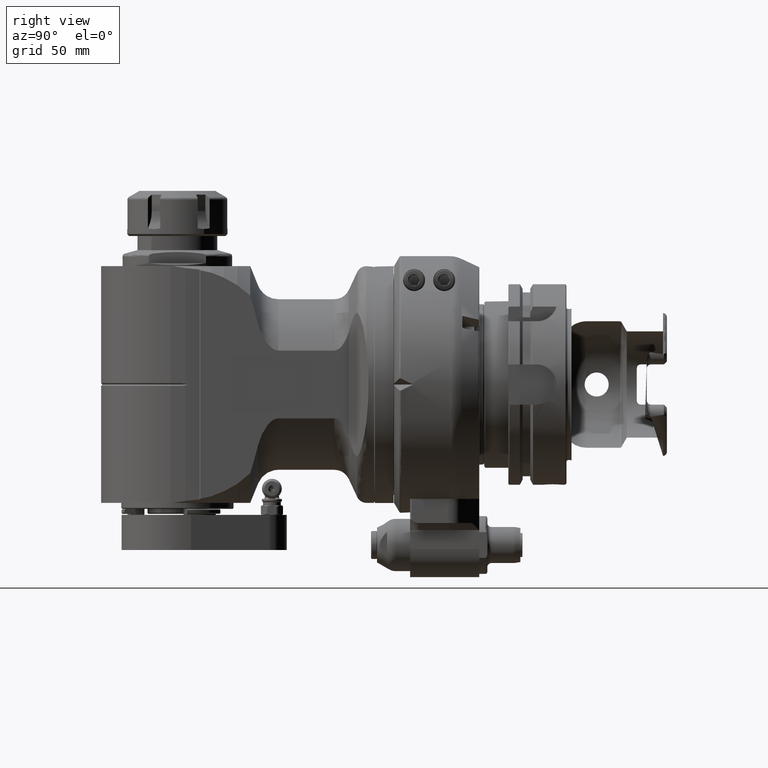
[diagram: clean part render]
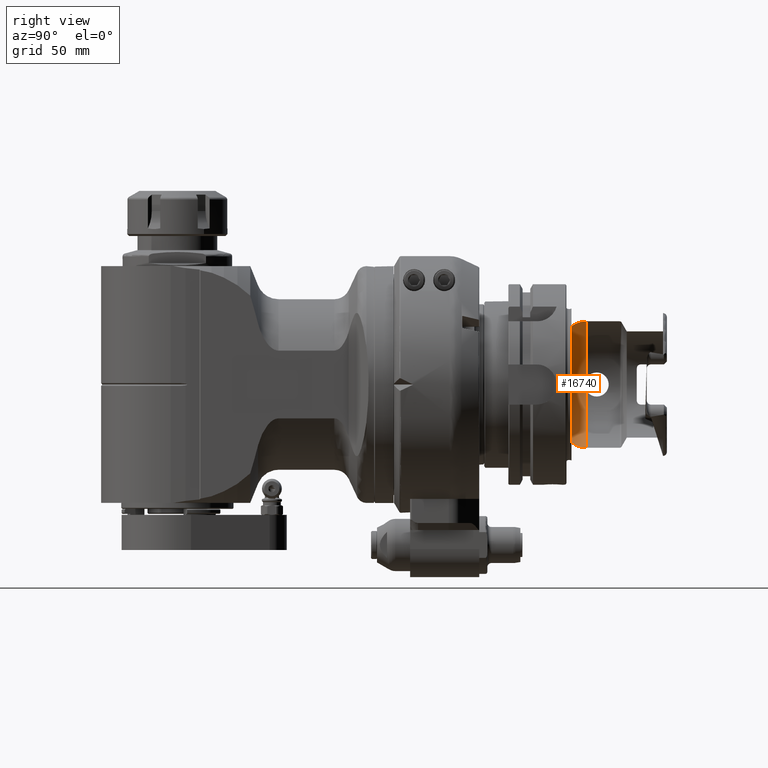
[diagram: same view with one face highlighted and labeled with its STEP entity id]
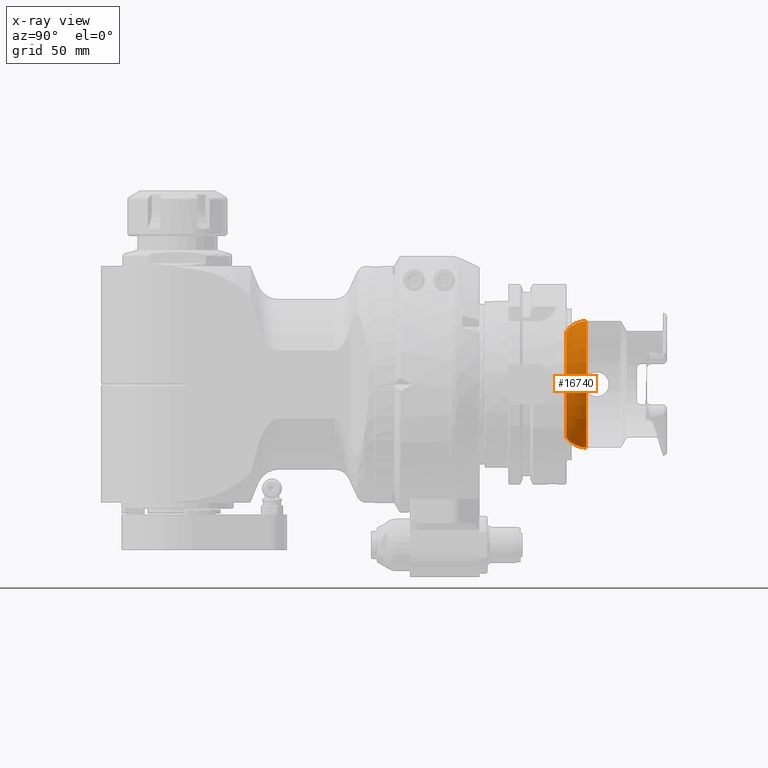
[diagram: x-ray of the same camera — body ghosted, the highlighted face saturated]
A machine part, right view. The second image highlights one B-rep face of the part: STEP entity #16740.
The next image is the same camera in x-ray: the body ghosted, the highlighted face saturated — about 0% of this face is hidden behind the body in this view.
In plain terms, the highlighted toroidal blend (fillet) surface has major radius 19.5 mm and minor (blend) radius 12 mm.
Its self-contained STEP definition (entity closure, byte-faithful):
#91=TOROIDAL_SURFACE('',#18448,19.5,12.);
#4104=CIRCLE('',#18446,26.5);
#4105=CIRCLE('',#18447,26.5);
#4106=CIRCLE('',#18449,12.);
#4107=CIRCLE('',#18450,31.5);
#4108=CIRCLE('',#18451,31.5);
#4109=CIRCLE('',#18452,31.5);
#4110=CIRCLE('',#18453,31.5);
#4999=FACE_OUTER_BOUND('',#6054,.T.);
#6054=EDGE_LOOP('',(#14824,#14825,#14826,#14827,#14828,#14829,#14830,#14831,
#14832,#14833));
#6430=B_SPLINE_CURVE_WITH_KNOTS('',3,(#31504,#31505,#31506,#31507,#31508,
#31509,#31510,#31511,#31512,#31513,#31514,#31515,#31516,#31517,#31518,#31519,
#31520,#31521,#31522,#31523,#31524,#31525,#31526,#31527,#31528,#31529,#31530,
#31531,#31532,#31533,#31534,#31535,#31536,#31537,#31538,#31539,#31540,#31541,
#31542,#31543,#31544,#31545,#31546,#31547,#31548,#31549,#31550,#31551,#31552,
#31553,#31554,#31555,#31556,#31557,#31558),.UNSPECIFIED.,.F.,.F.,(4,3,3,
3,3,3,3,3,3,3,3,3,3,3,3,3,3,3,4),(0.,0.05555555555556,0.1111111111111,0.1666666666667,
0.2222222222222,0.2777777777778,0.3333333333333,0.3888888888889,0.4444444444444,
0.5,0.5555555555556,0.6111111111111,0.6666666666667,0.7222222222222,0.7777777777778,
0.8333333333333,0.8888888888889,0.9444444444444,1.),.UNSPECIFIED.);
#6431=B_SPLINE_CURVE_WITH_KNOTS('',3,(#31564,#31565,#31566,#31567,#31568,
#31569,#31570,#31571,#31572,#31573,#31574,#31575,#31576,#31577,#31578,#31579,
#31580,#31581,#31582,#31583,#31584,#31585,#31586,#31587,#31588,#31589,#31590,
#31591,#31592,#31593,#31594,#31595,#31596,#31597,#31598,#31599,#31600,#31601,
#31602,#31603,#31604,#31605,#31606,#31607,#31608,#31609,#31610,#31611,#31612,
#31613,#31614,#31615,#31616,#31617,#31618),.UNSPECIFIED.,.F.,.F.,(4,3,3,
3,3,3,3,3,3,3,3,3,3,3,3,3,3,3,4),(0.,0.05555555555556,0.1111111111111,0.1666666666667,
0.2222222222222,0.2777777777778,0.3333333333333,0.3888888888889,0.4444444444444,
0.5,0.5555555555556,0.6111111111111,0.6666666666667,0.7222222222222,0.7777777777778,
0.8333333333333,0.8888888888889,0.9444444444444,1.),.UNSPECIFIED.);
#7952=VERTEX_POINT('',#31493);
#7953=VERTEX_POINT('',#31495);
#7954=VERTEX_POINT('',#31499);
#7955=VERTEX_POINT('',#31501);
#7956=VERTEX_POINT('',#31503);
#7957=VERTEX_POINT('',#31559);
#7958=VERTEX_POINT('',#31561);
#7959=VERTEX_POINT('',#31563);
#10291=EDGE_CURVE('',#7953,#7952,#4104,.T.);
#10292=EDGE_CURVE('',#7952,#7953,#4105,.T.);
#10293=EDGE_CURVE('',#7953,#7954,#4106,.T.);
#10294=EDGE_CURVE('',#7954,#7955,#4107,.T.);
#10295=EDGE_CURVE('',#7956,#7955,#6430,.T.);
#10296=EDGE_CURVE('',#7956,#7957,#4108,.T.);
#10297=EDGE_CURVE('',#7957,#7958,#4109,.T.);
#10298=EDGE_CURVE('',#7959,#7958,#6431,.T.);
#10299=EDGE_CURVE('',#7959,#7954,#4110,.T.);
#14824=ORIENTED_EDGE('',*,*,#10291,.T.);
#14825=ORIENTED_EDGE('',*,*,#10292,.T.);
#14826=ORIENTED_EDGE('',*,*,#10293,.T.);
#14827=ORIENTED_EDGE('',*,*,#10294,.T.);
#14828=ORIENTED_EDGE('',*,*,#10295,.F.);
#14829=ORIENTED_EDGE('',*,*,#10296,.T.);
#14830=ORIENTED_EDGE('',*,*,#10297,.T.);
#14831=ORIENTED_EDGE('',*,*,#10298,.F.);
#14832=ORIENTED_EDGE('',*,*,#10299,.T.);
#14833=ORIENTED_EDGE('',*,*,#10293,.F.);
#16740=ADVANCED_FACE('',(#4999),#91,.F.);
#18446=AXIS2_PLACEMENT_3D('',#31496,#22709,#22710);
#18447=AXIS2_PLACEMENT_3D('',#31497,#22711,#22712);
#18448=AXIS2_PLACEMENT_3D('',#31498,#22713,#22714);
#18449=AXIS2_PLACEMENT_3D('',#31500,#22715,#22716);
#18450=AXIS2_PLACEMENT_3D('',#31502,#22717,#22718);
#18451=AXIS2_PLACEMENT_3D('',#31560,#22719,#22720);
#18452=AXIS2_PLACEMENT_3D('',#31562,#22721,#22722);
#18453=AXIS2_PLACEMENT_3D('',#31619,#22723,#22724);
#22709=DIRECTION('center_axis',(0.,-1.,-3.552713678797E-13));
#22710=DIRECTION('ref_axis',(0.,3.552713678797E-13,-1.));
#22711=DIRECTION('center_axis',(0.,-1.,-3.552713678797E-13));
#22712=DIRECTION('ref_axis',(0.,3.552713678797E-13,-1.));
#22713=DIRECTION('center_axis',(0.,1.,3.552713678797E-13));
#22714=DIRECTION('ref_axis',(0.,-3.55045798757587E-13,1.));
#22715=DIRECTION('center_axis',(1.,4.35081943502576E-29,-1.22464679914735E-16));
#22716=DIRECTION('ref_axis',(-1.22464679914735E-16,3.5527136788005E-13,
-1.));
#22717=DIRECTION('center_axis',(0.,1.,3.552713678797E-13));
#22718=DIRECTION('ref_axis',(0.,3.552713678797E-13,-1.));
#22719=DIRECTION('center_axis',(0.,1.,3.552713678797E-13));
#22720=DIRECTION('ref_axis',(0.,-3.552713678797E-13,1.));
#22721=DIRECTION('center_axis',(0.,1.,3.552713678797E-13));
#22722=DIRECTION('ref_axis',(0.,-3.552713678797E-13,1.));
#22723=DIRECTION('center_axis',(0.,1.,3.552713678797E-13));
#22724=DIRECTION('ref_axis',(0.,3.552713678797E-13,-1.));
#31493=CARTESIAN_POINT('',(3.24531401774049E-15,85.9999997692206,26.5000000000168));
#31495=CARTESIAN_POINT('',(0.,85.99999976924,-26.49999999998));
#31496=CARTESIAN_POINT('Origin',(0.,85.99999976923,1.677726611824E-11));
#31497=CARTESIAN_POINT('Origin',(0.,85.99999976923,1.677726611824E-11));
#31498=CARTESIAN_POINT('Origin',(0.,95.74679411405,2.024002307757E-11));
#31499=CARTESIAN_POINT('',(-3.85763741731416E-15,95.7467941140612,-31.4999999999798));
#31500=CARTESIAN_POINT('Origin',(-2.38806125833734E-15,95.7467941140569,
-19.4999999999798));
#31501=CARTESIAN_POINT('',(-31.36632222075,95.74679411404,-2.898936071055));
#31502=CARTESIAN_POINT('Origin',(0.,95.74679411405,2.024002307757E-11));
#31503=CARTESIAN_POINT('',(-31.36632222075,95.74679411403,2.898936071092));
#31504=CARTESIAN_POINT('Ctrl Pts',(-31.36632222075,95.7467941140142,2.89893607110073));
#31505=CARTESIAN_POINT('Ctrl Pts',(-31.37531853835,95.6930780756117,2.80159643000769));
#31506=CARTESIAN_POINT('Ctrl Pts',(-31.383648521965,95.6419815165672,2.70260779605981));
#31507=CARTESIAN_POINT('Ctrl Pts',(-31.3913619470342,95.5935947419713,2.60207315069057));
#31508=CARTESIAN_POINT('Ctrl Pts',(-31.3990753721033,95.5452079673754,2.50153850532136));
#31509=CARTESIAN_POINT('Ctrl Pts',(-31.4061722386267,95.4995339352361,2.39945646354527));
#31510=CARTESIAN_POINT('Ctrl Pts',(-31.4126891274517,95.4567217827438,2.29609868360266));
#31511=CARTESIAN_POINT('Ctrl Pts',(-31.4192060162767,95.4139096302514,2.19274090365993));
#31512=CARTESIAN_POINT('Ctrl Pts',(-31.4251429274033,95.373959657009,2.08810705460263));
#31513=CARTESIAN_POINT('Ctrl Pts',(-31.430538543485,95.3369906478034,1.98250540754228));
#31514=CARTESIAN_POINT('Ctrl Pts',(-31.4359341595667,95.300021638598,1.87690376048211));
#31515=CARTESIAN_POINT('Ctrl Pts',(-31.4407884806033,95.2660262072807,1.77033701510099));
#31516=CARTESIAN_POINT('Ctrl Pts',(-31.4451518330617,95.2349864401955,1.66271504363747));
#31517=CARTESIAN_POINT('Ctrl Pts',(-31.44951518552,95.2039466731102,1.55509307217376));
#31518=CARTESIAN_POINT('Ctrl Pts',(-31.4533875694,95.1758692439888,1.44641407956711));
#31519=CARTESIAN_POINT('Ctrl Pts',(-31.45679501037,95.1508473479314,1.33694276343067));
#31520=CARTESIAN_POINT('Ctrl Pts',(-31.46020245134,95.125825451874,1.22747144729444));
#31521=CARTESIAN_POINT('Ctrl Pts',(-31.4631449494,95.1038594945956,1.11720756920124));
#31522=CARTESIAN_POINT('Ctrl Pts',(-31.4656462290433,95.0850134840894,1.00644783613428));
#31523=CARTESIAN_POINT('Ctrl Pts',(-31.4681475086867,95.0661674735831,0.895688103067117));
#31524=CARTESIAN_POINT('Ctrl Pts',(-31.4702075699133,95.0504393741602,0.78443280116747));
#31525=CARTESIAN_POINT('Ctrl Pts',(-31.4718476266833,95.0378491853719,0.672874739939652));
#31526=CARTESIAN_POINT('Ctrl Pts',(-31.4734876834533,95.0252589965837,0.561316678712033));
#31527=CARTESIAN_POINT('Ctrl Pts',(-31.4747077357667,95.0158025398798,0.449456448250989));
#31528=CARTESIAN_POINT('Ctrl Pts',(-31.4755207811933,95.0094860514782,0.337261616051732));
#31529=CARTESIAN_POINT('Ctrl Pts',(-31.47633382662,95.0031695630766,0.225066783852272));
#31530=CARTESIAN_POINT('Ctrl Pts',(-31.47673986516,94.9999999265284,0.112537052768159));
#31531=CARTESIAN_POINT('Ctrl Pts',(-31.47673988223,94.9999997692176,8.38779438840413E-6));
#31532=CARTESIAN_POINT('Ctrl Pts',(-31.4767398993,94.9999996119068,-0.112520277179382));
#31533=CARTESIAN_POINT('Ctrl Pts',(-31.4763338949,95.003168936674,-0.225048118542352));
#31534=CARTESIAN_POINT('Ctrl Pts',(-31.4755209449417,95.0094847797588,-0.337239026691932));
#31535=CARTESIAN_POINT('Ctrl Pts',(-31.4747079949833,95.0158006228435,-0.449429934841311));
#31536=CARTESIAN_POINT('Ctrl Pts',(-31.4734880994667,95.0252559264197,-0.561284211502711));
#31537=CARTESIAN_POINT('Ctrl Pts',(-31.4718480873883,95.03784564823,-0.672843397553262));
#31538=CARTESIAN_POINT('Ctrl Pts',(-31.47020807531,95.0504353700403,-0.784402583604016));
#31539=CARTESIAN_POINT('Ctrl Pts',(-31.46814794667,95.0661640596482,-0.89566604729627));
#31540=CARTESIAN_POINT('Ctrl Pts',(-31.4656466262067,95.0850104916589,-1.00643024914366));
#31541=CARTESIAN_POINT('Ctrl Pts',(-31.4631453057433,95.1038569236697,-1.11719445099084));
#31542=CARTESIAN_POINT('Ctrl Pts',(-31.4602027934567,95.1258229077677,-1.22745915104048));
#31543=CARTESIAN_POINT('Ctrl Pts',(-31.45679543146,95.1508442556744,-1.33692923462566));
#31544=CARTESIAN_POINT('Ctrl Pts',(-31.4533880694633,95.1758656035811,-1.44639931821103));
#31545=CARTESIAN_POINT('Ctrl Pts',(-31.4495158577567,95.2039418531402,-1.55507502994917));
#31546=CARTESIAN_POINT('Ctrl Pts',(-31.445152602315,95.2349809684404,-1.66269607164969));
#31547=CARTESIAN_POINT('Ctrl Pts',(-31.4407893468733,95.2660200837405,-1.77031711335001));
#31548=CARTESIAN_POINT('Ctrl Pts',(-31.4359350476967,95.3000154904858,-1.87688525116087));
#31549=CARTESIAN_POINT('Ctrl Pts',(-31.4305393527433,95.3369851025408,-1.98248956743346));
#31550=CARTESIAN_POINT('Ctrl Pts',(-31.42514365779,95.3739547145959,-2.08809388370624));
#31551=CARTESIAN_POINT('Ctrl Pts',(-31.41920656706,95.4139059483863,-2.19273167073608));
#31552=CARTESIAN_POINT('Ctrl Pts',(-31.412689538785,95.4567190805675,-2.29609215991061));
#31553=CARTESIAN_POINT('Ctrl Pts',(-31.40617251051,95.4995322127486,-2.39945264908496));
#31554=CARTESIAN_POINT('Ctrl Pts',(-31.39907554469,95.5452068855729,-2.50153619529826));
#31555=CARTESIAN_POINT('Ctrl Pts',(-31.3913620474575,95.5935941120167,-2.60207184177038));
#31556=CARTESIAN_POINT('Ctrl Pts',(-31.383648550225,95.6419813384605,-2.70260748824267));
#31557=CARTESIAN_POINT('Ctrl Pts',(-31.37531852158,95.693078175739,-2.80159661140608));
#31558=CARTESIAN_POINT('Ctrl Pts',(-31.36632222075,95.7467941140196,-2.89893607106629));
#31559=CARTESIAN_POINT('',(-3.85763741731416E-15,95.746794113988,31.5000000000202));
#31560=CARTESIAN_POINT('Origin',(0.,95.74679411405,2.024002307757E-11));
#31561=CARTESIAN_POINT('',(31.36632222075,95.74679411404,2.898936071132));
#31562=CARTESIAN_POINT('Origin',(0.,95.74679411405,2.024002307757E-11));
#31563=CARTESIAN_POINT('',(31.36632222075,95.74679411403,-2.898936071055));
#31564=CARTESIAN_POINT('Ctrl Pts',(31.36632222075,95.7467941140001,-2.89893607107148));
#31565=CARTESIAN_POINT('Ctrl Pts',(31.37531853835,95.6930780755948,-2.80159642997373));
#31566=CARTESIAN_POINT('Ctrl Pts',(31.38364852196,95.6419815165548,-2.70260779603498));
#31567=CARTESIAN_POINT('Ctrl Pts',(31.3913619470283,95.5935947419609,-2.60207315067103));
#31568=CARTESIAN_POINT('Ctrl Pts',(31.3990753720967,95.5452079673669,-2.50153850530711));
#31569=CARTESIAN_POINT('Ctrl Pts',(31.4061722386233,95.4995339352272,-2.39945646353171));
#31570=CARTESIAN_POINT('Ctrl Pts',(31.4126891274483,95.4567217827347,-2.29609868359037));
#31571=CARTESIAN_POINT('Ctrl Pts',(31.4192060162733,95.4139096302421,-2.19274090364892));
#31572=CARTESIAN_POINT('Ctrl Pts',(31.4251429273967,95.3739596569998,-2.08810705459386));
#31573=CARTESIAN_POINT('Ctrl Pts',(31.4305385434783,95.336990647794,-1.98250540753484));
#31574=CARTESIAN_POINT('Ctrl Pts',(31.43593415956,95.3000216385882,-1.876903760476));
#31575=CARTESIAN_POINT('Ctrl Pts',(31.4407884806,95.2660262072702,-1.77033701509516));
#31576=CARTESIAN_POINT('Ctrl Pts',(31.44515183306,95.2349864401842,-1.66271504363183));
#31577=CARTESIAN_POINT('Ctrl Pts',(31.44951518552,95.2039466730982,-1.5550930721683));
#31578=CARTESIAN_POINT('Ctrl Pts',(31.4533875694,95.1758692439762,-1.44641407956179));
#31579=CARTESIAN_POINT('Ctrl Pts',(31.45679501037,95.150847347918,-1.33694276342562));
#31580=CARTESIAN_POINT('Ctrl Pts',(31.46020245134,95.1258254518599,-1.22747144728965));
#31581=CARTESIAN_POINT('Ctrl Pts',(31.4631449494,95.1038594945808,-1.11720756919681));
#31582=CARTESIAN_POINT('Ctrl Pts',(31.4656462290417,95.0850134840738,-1.00644783612978));
#31583=CARTESIAN_POINT('Ctrl Pts',(31.4681475086833,95.0661674735668,-0.895688103062557));
#31584=CARTESIAN_POINT('Ctrl Pts',(31.4702075699067,95.050439374143,-0.784432801162521));
#31585=CARTESIAN_POINT('Ctrl Pts',(31.4718476266767,95.037849185354,-0.672874739934639));
#31586=CARTESIAN_POINT('Ctrl Pts',(31.4734876834467,95.0252589965651,-0.561316678706958));
#31587=CARTESIAN_POINT('Ctrl Pts',(31.4747077357633,95.0158025398604,-0.449456448246091));
#31588=CARTESIAN_POINT('Ctrl Pts',(31.4755207811917,95.0094860514581,-0.337261616046927));
#31589=CARTESIAN_POINT('Ctrl Pts',(31.47633382662,95.0031695630557,-0.225066783847558));
#31590=CARTESIAN_POINT('Ctrl Pts',(31.47673986516,94.9999999265068,-0.112537052763454));
#31591=CARTESIAN_POINT('Ctrl Pts',(31.47673988223,94.9999997691952,-8.38778967080472E-6));
#31592=CARTESIAN_POINT('Ctrl Pts',(31.4767398993,94.9999996118837,0.112520277184113));
#31593=CARTESIAN_POINT('Ctrl Pts',(31.4763338949,95.0031689366501,0.22504811854702));
#31594=CARTESIAN_POINT('Ctrl Pts',(31.4755209449417,95.0094847797341,0.337239026696532));
#31595=CARTESIAN_POINT('Ctrl Pts',(31.4747079949833,95.0158006228182,0.449429934845843));
#31596=CARTESIAN_POINT('Ctrl Pts',(31.4734880994667,95.0252559263937,0.561284211507261));
#31597=CARTESIAN_POINT('Ctrl Pts',(31.4718480873883,95.0378456482032,0.67284339755787));
#31598=CARTESIAN_POINT('Ctrl Pts',(31.47020807531,95.0504353700127,0.784402583608682));
#31599=CARTESIAN_POINT('Ctrl Pts',(31.46814794667,95.0661640596199,0.895666047301004));
#31600=CARTESIAN_POINT('Ctrl Pts',(31.465646626205,95.0850104916299,1.00643024914866));
#31601=CARTESIAN_POINT('Ctrl Pts',(31.46314530574,95.10385692364,1.11719445099611));
#31602=CARTESIAN_POINT('Ctrl Pts',(31.46020279345,95.1258229077373,1.22745915104621));
#31603=CARTESIAN_POINT('Ctrl Pts',(31.4567954314533,95.1508442556433,1.33692923463173));
#31604=CARTESIAN_POINT('Ctrl Pts',(31.4533880694567,95.1758656035494,1.44639931821745));
#31605=CARTESIAN_POINT('Ctrl Pts',(31.4495158577533,95.2039418531078,1.55507502995584));
#31606=CARTESIAN_POINT('Ctrl Pts',(31.4451526023133,95.2349809684072,1.66269607165629));
#31607=CARTESIAN_POINT('Ctrl Pts',(31.4407893468733,95.2660200837065,1.77031711335656));
#31608=CARTESIAN_POINT('Ctrl Pts',(31.4359350476967,95.3000154904508,1.87688525116696));
#31609=CARTESIAN_POINT('Ctrl Pts',(31.4305393527417,95.3369851025057,1.98248956744139));
#31610=CARTESIAN_POINT('Ctrl Pts',(31.4251436577867,95.3739547145607,2.08809388371601));
#31611=CARTESIAN_POINT('Ctrl Pts',(31.4192065670533,95.4139059483521,2.19273167075008));
#31612=CARTESIAN_POINT('Ctrl Pts',(31.4126895387783,95.4567190805332,2.29609215992586));
#31613=CARTESIAN_POINT('Ctrl Pts',(31.4061725105033,95.4995322127142,2.39945264910144));
#31614=CARTESIAN_POINT('Ctrl Pts',(31.3990755446867,95.5452068855369,2.50153619531293));
#31615=CARTESIAN_POINT('Ctrl Pts',(31.3913620474559,95.5935941119841,2.60207184179322));
#31616=CARTESIAN_POINT('Ctrl Pts',(31.383648550225,95.6419813384313,2.7026074882737));
#31617=CARTESIAN_POINT('Ctrl Pts',(31.37531852158,95.6930781757194,2.80159661145509));
#31618=CARTESIAN_POINT('Ctrl Pts',(31.36632222075,95.7467941139971,2.89893607111016));
#31619=CARTESIAN_POINT('Origin',(0.,95.74679411405,2.024002307757E-11));